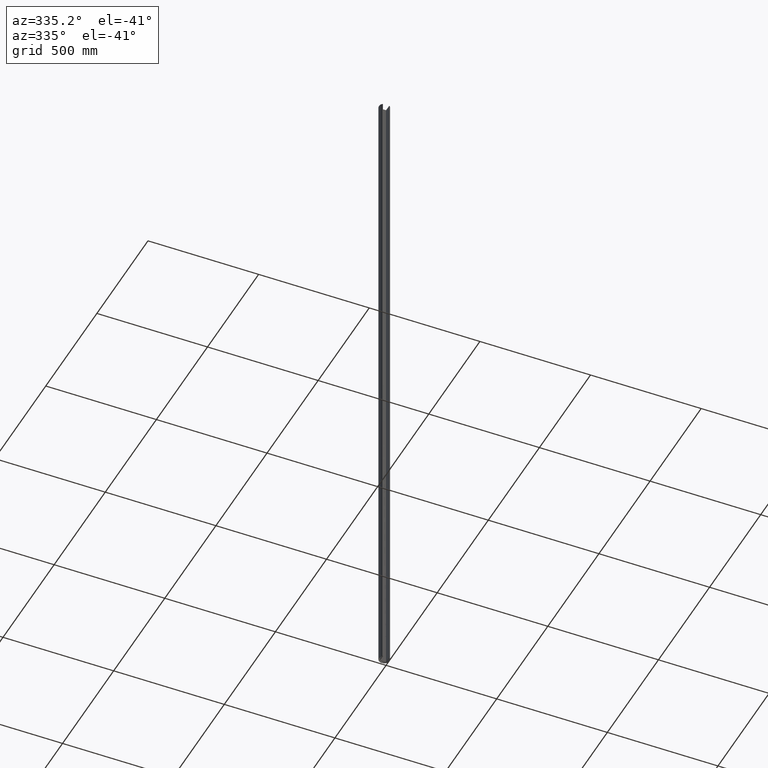
[diagram: clean part render]
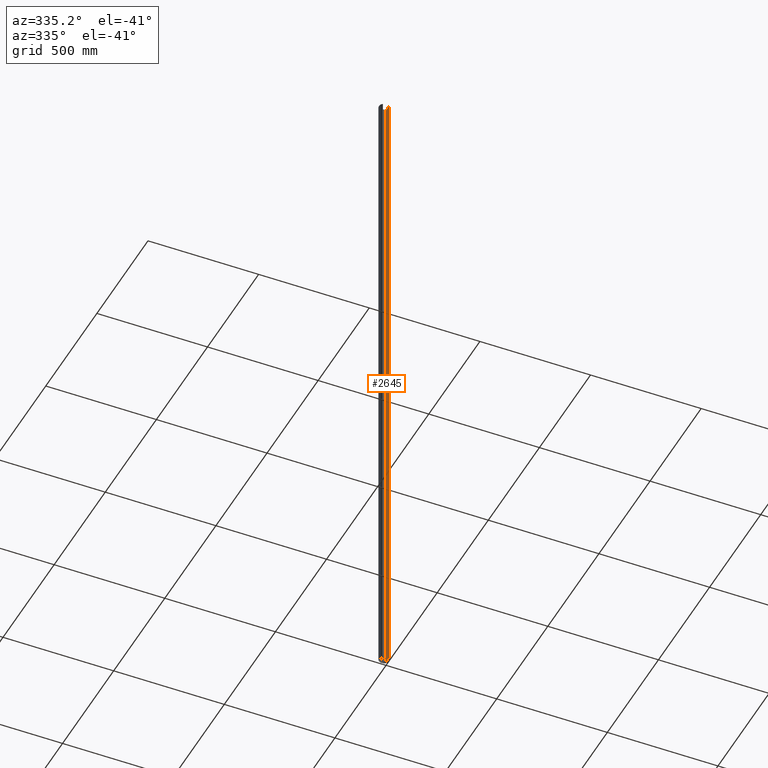
[diagram: same view with one face highlighted and labeled with its STEP entity id]
A machine part, auxiliary view. The second image highlights one B-rep face of the part: STEP entity #2645.
In plain terms, the highlighted planar face has unit normal (-1, 0, 0).
Its self-contained STEP definition (entity closure, byte-faithful):
#209 = DIRECTION ( 'NONE',  ( -0.000000000000000000, -1.000000000000000000, -0.000000000000000000 ) ) ;
#1090 = VERTEX_POINT ( 'NONE', #12592 ) ;
#1122 = EDGE_CURVE ( 'NONE', #8296, #1775, #13049, .T. ) ;
#1775 = VERTEX_POINT ( 'NONE', #12455 ) ;
#2158 = LINE ( 'NONE', #14652, #11721 ) ;
#2308 = LINE ( 'NONE', #14041, #8011 ) ;
#2645 = ADVANCED_FACE ( 'NONE', ( #12108 ), #14958, .T. ) ;
#3110 = EDGE_CURVE ( 'NONE', #14972, #1090, #2158, .T. ) ;
#3386 = CARTESIAN_POINT ( 'NONE',  ( 13.50000000000000178, 28.64806224760345899, 1500.000000000000000 ) ) ;
#5279 = EDGE_CURVE ( 'NONE', #1775, #1090, #2308, .T. ) ;
#6202 = ORIENTED_EDGE ( 'NONE', *, *, #5279, .T. ) ;
#6555 = VECTOR ( 'NONE', #15388, 1000.000000000000000 ) ;
#6789 = DIRECTION ( 'NONE',  ( 0.000000000000000000, 0.000000000000000000, 1.000000000000000000 ) ) ;
#7575 = CARTESIAN_POINT ( 'NONE',  ( 13.50000000000000178, 1.148062247603463426, -1500.000000000000000 ) ) ;
#7694 = EDGE_CURVE ( 'NONE', #8296, #14972, #13718, .T. ) ;
#8011 = VECTOR ( 'NONE', #6789, 1000.000000000000000 ) ;
#8157 = CARTESIAN_POINT ( 'NONE',  ( 13.50000000000000178, 1.148062247603463426, -1500.000000000000000 ) ) ;
#8296 = VERTEX_POINT ( 'NONE', #9035 ) ;
#8355 = ORIENTED_EDGE ( 'NONE', *, *, #1122, .T. ) ;
#8725 = AXIS2_PLACEMENT_3D ( 'NONE', #7575, #11137, #13730 ) ;
#9035 = CARTESIAN_POINT ( 'NONE',  ( 13.50000000000000178, 28.64806224760345899, -1500.000000000000000 ) ) ;
#11137 = DIRECTION ( 'NONE',  ( -1.000000000000000000, 0.000000000000000000, 0.000000000000000000 ) ) ;
#11721 = VECTOR ( 'NONE', #209, 1000.000000000000000 ) ;
#12108 = FACE_OUTER_BOUND ( 'NONE', #14434, .T. ) ;
#12401 = VECTOR ( 'NONE', #14901, 1000.000000000000000 ) ;
#12455 = CARTESIAN_POINT ( 'NONE',  ( 13.50000000000000178, 1.148062247603463426, -1500.000000000000000 ) ) ;
#12533 = CARTESIAN_POINT ( 'NONE',  ( 13.50000000000000178, 28.64806224760345899, -1500.000000000000000 ) ) ;
#12592 = CARTESIAN_POINT ( 'NONE',  ( 13.50000000000000178, 1.148062247603463426, 1500.000000000000000 ) ) ;
#12695 = ORIENTED_EDGE ( 'NONE', *, *, #3110, .F. ) ;
#13049 = LINE ( 'NONE', #8157, #6555 ) ;
#13573 = ORIENTED_EDGE ( 'NONE', *, *, #7694, .F. ) ;
#13718 = LINE ( 'NONE', #12533, #12401 ) ;
#13730 = DIRECTION ( 'NONE',  ( 0.000000000000000000, 0.000000000000000000, 1.000000000000000000 ) ) ;
#14041 = CARTESIAN_POINT ( 'NONE',  ( 13.50000000000000178, 1.148062247603463426, -1500.000000000000000 ) ) ;
#14434 = EDGE_LOOP ( 'NONE', ( #12695, #13573, #8355, #6202 ) ) ;
#14652 = CARTESIAN_POINT ( 'NONE',  ( 13.50000000000000178, 1.148062247603463426, 1500.000000000000000 ) ) ;
#14901 = DIRECTION ( 'NONE',  ( 0.000000000000000000, 0.000000000000000000, 1.000000000000000000 ) ) ;
#14958 = PLANE ( 'NONE',  #8725 ) ;
#14972 = VERTEX_POINT ( 'NONE', #3386 ) ;
#15388 = DIRECTION ( 'NONE',  ( -0.000000000000000000, -1.000000000000000000, -0.000000000000000000 ) ) ;